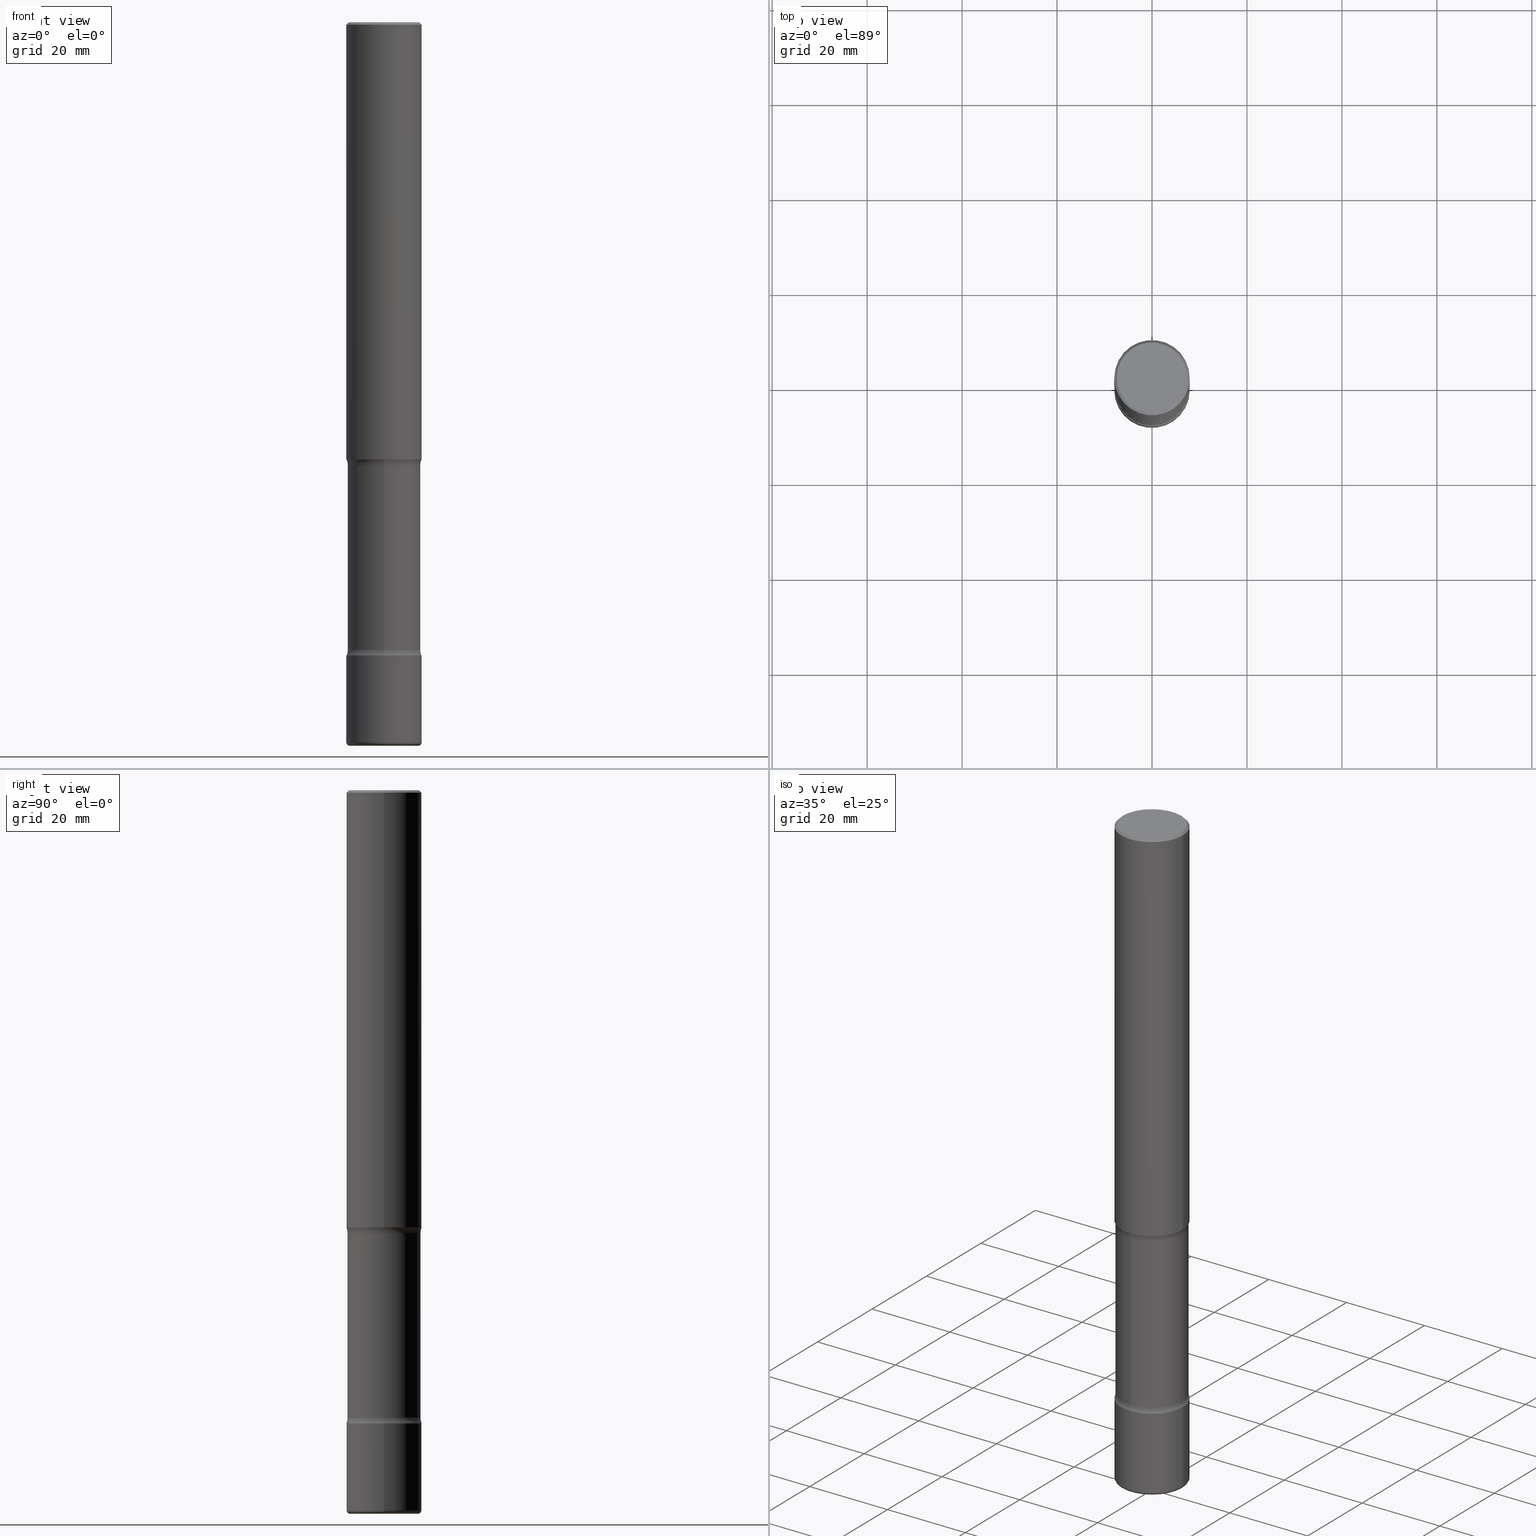
[diagram: canonical four-view strip — front | top / right | iso, engineering-drawing reading convention]
A machine part, canonical four-view strip (front | top / right | iso — engineering-drawing reading convention). The complete STEP part file that produces these views, byte-faithful:
ISO-10303-21;
HEADER;
FILE_DESCRIPTION (( 'STEP AP203' ),
    '1' );
FILE_NAME ('33556.STEP',
    '2024-03-01T22:48:47',
    ( '' ),
    ( '' ),
    'SwSTEP 2.0',
    'SolidWorks 2023',
    '' );
FILE_SCHEMA (( 'CONFIG_CONTROL_DESIGN' ));
ENDSEC;

DATA;
#1 = DATE_TIME_ROLE ( 'classification_date' ) ;
#2 = ORIENTED_EDGE ( 'NONE', *, *, #442, .T. ) ;
#3 = AXIS2_PLACEMENT_3D ( 'NONE', #150, #164, #212 ) ;
#4 = ORIENTED_EDGE ( 'NONE', *, *, #517, .F. ) ;
#5 = ORIENTED_EDGE ( 'NONE', *, *, #413, .T. ) ;
#6 = DIRECTION ( 'NONE',  ( -2.445468806185136597E-29, 3.491481338843145583E-15, 1.000000000000000000 ) ) ;
#7 = LINE ( 'NONE', #439, #477 ) ;
#8 = DIRECTION ( 'NONE',  ( -2.445468806185136877E-29, 3.491481338843145188E-15, 1.000000000000000000 ) ) ;
#9 = CARTESIAN_POINT ( 'NONE',  ( 1.283871123247196938E-28, -1.833027702892651638E-14, -5.250000000000000888 ) ) ;
#10 = DIRECTION ( 'NONE',  ( -2.445468806185136597E-29, 3.491481338843145583E-15, 1.000000000000000000 ) ) ;
#11 = ORIENTED_EDGE ( 'NONE', *, *, #364, .F. ) ;
#12 = DIRECTION ( 'NONE',  ( 6.982962677686266711E-15, 1.000000000000000000, -3.172765739582314775E-15 ) ) ;
#13 = CLOSED_SHELL ( 'NONE', ( #528, #279, #483, #444, #234, #324, #281, #52 ) ) ;
#14 = DIRECTION ( 'NONE',  ( -1.000000000000000000, 6.982962677686265922E-15, -4.883557194083112901E-29 ) ) ;
#15 = ORGANIZATION ( 'UNSPECIFIED', 'UNSPECIFIED', '' ) ;
#16 = APPROVAL_PERSON_ORGANIZATION ( #33, #199, #175 ) ;
#17 = PRODUCT_DEFINITION ( 'UNKNOWN', '', #45, #478 ) ;
#18 = DIRECTION ( 'NONE',  ( -2.445468806185136597E-29, 3.491481338843145583E-15, 1.000000000000000000 ) ) ;
#19 = ADVANCED_FACE ( 'NONE', ( #165 ), #74, .T. ) ;
#20 = ORIENTED_EDGE ( 'NONE', *, *, #408, .T. ) ;
#21 = AXIS2_PLACEMENT_3D ( 'NONE', #493, #59, #152 ) ;
#22 = AXIS2_PLACEMENT_3D ( 'NONE', #216, #170, #479 ) ;
#23 = DIRECTION ( 'NONE',  ( 1.000000000000000000, -6.982962677686274599E-15, 0.000000000000000000 ) ) ;
#24 = ORIENTED_EDGE ( 'NONE', *, *, #491, .F. ) ;
#25 = ORIENTED_EDGE ( 'NONE', *, *, #484, .T. ) ;
#26 = EDGE_CURVE ( 'NONE', #429, #349, #83, .T. ) ;
#27 = CARTESIAN_POINT ( 'NONE',  ( 2.112346210000245327E-15, 0.3024999999999795075, -6.000000000000001776 ) ) ;
#28 = CARTESIAN_POINT ( 'NONE',  ( -0.3125000000000001665, 2.220446049250314264E-15, -1.537167215704658792E-29 ) ) ;
#29 = CARTESIAN_POINT ( 'NONE',  ( 8.864824422421122405E-29, -1.265661985330640574E-14, -3.625000000000000888 ) ) ;
#30 = VECTOR ( 'NONE', #140, 39.37007874015748143 ) ;
#31 = CIRCLE ( 'NONE', #84, 0.1250000000000000278 ) ;
#32 = APPROVAL_DATE_TIME ( #295, #199 ) ;
#33 = PERSON_AND_ORGANIZATION ( #446, #15 ) ;
#34 = ORIENTED_EDGE ( 'NONE', *, *, #125, .T. ) ;
#35 = DIRECTION ( 'NONE',  ( 2.438088387897960049E-29, -3.491481338843145188E-15, -1.000000000000000000 ) ) ;
#36 = ADVANCED_FACE ( 'NONE', ( #255 ), #424, .F. ) ;
#37 = AXIS2_PLACEMENT_3D ( 'NONE', #190, #282, #301 ) ;
#38 = DIRECTION ( 'NONE',  ( 6.982962677686265133E-15, 1.000000000000000000, -3.612360983357701258E-15 ) ) ;
#39 = SECURITY_CLASSIFICATION ( '', '', #251 ) ;
#40 = DATE_TIME_ROLE ( 'creation_date' ) ;
#41 = CONICAL_SURFACE ( 'NONE', #58, 0.3125000000000005551, 0.7853981633974463916 ) ;
#42 = APPLICATION_PROTOCOL_DEFINITION ( 'international standard', 'config_control_design', 1994, #386 ) ;
#43 = DIRECTION ( 'NONE',  ( -6.982962677686265922E-15, -1.000000000000000000, 3.172765739582314775E-15 ) ) ;
#44 = ORIENTED_EDGE ( 'NONE', *, *, #534, .T. ) ;
#45 = PRODUCT_DEFINITION_FORMATION_WITH_SPECIFIED_SOURCE ( 'ANY', '', #204, .NOT_KNOWN. ) ;
#46 = CARTESIAN_POINT ( 'NONE',  ( 2.112346210000222450E-15, 0.3024999999999818390, -5.201010205144337206 ) ) ;
#47 = DIRECTION ( 'NONE',  ( -2.445468806185136597E-29, 3.491481338843145583E-15, 1.000000000000000000 ) ) ;
#48 = VERTEX_POINT ( 'NONE', #267 ) ;
#49 = CARTESIAN_POINT ( 'NONE',  ( 0.2925000000000006484, -2.110215457714323481E-15, 4.268512490114932791E-18 ) ) ;
#50 = AXIS2_PLACEMENT_3D ( 'NONE', #117, #147, #230 ) ;
#51 = ORIENTED_EDGE ( 'NONE', *, *, #331, .F. ) ;
#52 = ADVANCED_FACE ( 'NONE', ( #343 ), #421, .T. ) ;
#53 = FACE_OUTER_BOUND ( 'NONE', #356, .T. ) ;
#54 = ORIENTED_EDGE ( 'NONE', *, *, #125, .F. ) ;
#55 = ORIENTED_EDGE ( 'NONE', *, *, #265, .T. ) ;
#56 = VECTOR ( 'NONE', #185, 39.37007874015748143 ) ;
#57 = EDGE_CURVE ( 'NONE', #357, #495, #286, .T. ) ;
#58 = AXIS2_PLACEMENT_3D ( 'NONE', #371, #260, #428 ) ;
#59 = DIRECTION ( 'NONE',  ( 2.668026719628616344E-29, -3.172765739582314775E-15, -1.000000000000000000 ) ) ;
#60 = DIRECTION ( 'NONE',  ( -1.000000000000000000, 6.982962677686266711E-15, 0.000000000000000000 ) ) ;
#61 = DIRECTION ( 'NONE',  ( 2.438088387897960049E-29, -3.491481338843145188E-15, -1.000000000000000000 ) ) ;
#62 = EDGE_CURVE ( 'NONE', #390, #349, #337, .T. ) ;
#63 = ORIENTED_EDGE ( 'NONE', *, *, #65, .F. ) ;
#64 = DIRECTION ( 'NONE',  ( 1.000000000000000000, -6.982962677686274599E-15, 0.000000000000000000 ) ) ;
#65 = EDGE_CURVE ( 'NONE', #530, #136, #375, .T. ) ;
#66 = FACE_OUTER_BOUND ( 'NONE', #232, .T. ) ;
#67 = CARTESIAN_POINT ( 'NONE',  ( -2.143905624303476607E-15, -0.3125000000000185962, -5.250000000000000000 ) ) ;
#68 = PERSON_AND_ORGANIZATION_ROLE ( 'creator' ) ;
#69 = CC_DESIGN_APPROVAL ( #401, ( #17 ) ) ;
#70 = EDGE_CURVE ( 'NONE', #525, #507, #130, .T. ) ;
#71 = DIRECTION ( 'NONE',  ( -2.445468806185136597E-29, 3.491481338843145583E-15, 1.000000000000000000 ) ) ;
#72 = DATE_AND_TIME ( #222, #92 ) ;
#73 = EDGE_CURVE ( 'NONE', #149, #459, #178, .T. ) ;
#74 = CYLINDRICAL_SURFACE ( 'NONE', #453, 0.3125000000000007216 ) ;
#75 = DIRECTION ( 'NONE',  ( 1.000000000000000000, -6.982962677686271444E-15, 0.000000000000000000 ) ) ;
#76 = PERSON_AND_ORGANIZATION ( #446, #15 ) ;
#77 = FACE_OUTER_BOUND ( 'NONE', #369, .T. ) ;
#78 = ORIENTED_EDGE ( 'NONE', *, *, #65, .T. ) ;
#79 = CARTESIAN_POINT ( 'NONE',  ( 0.3125000000000002220, -2.302631942967053926E-14, -5.969999999999999751 ) ) ;
#80 = PERSON_AND_ORGANIZATION ( #446, #15 ) ;
#81 = EDGE_CURVE ( 'NONE', #525, #429, #524, .T. ) ;
#82 = PLANE ( 'NONE',  #333 ) ;
#83 = CIRCLE ( 'NONE', #276, 0.3125000000000005551 ) ;
#84 = AXIS2_PLACEMENT_3D ( 'NONE', #311, #480, #227 ) ;
#85 = PERSON_AND_ORGANIZATION_ROLE ( 'classification_officer' ) ;
#86 = DIRECTION ( 'NONE',  ( 1.000000000000000000, -6.982962677686269866E-15, 0.000000000000000000 ) ) ;
#87 = AXIS2_PLACEMENT_3D ( 'NONE', #438, #47, #358 ) ;
#88 = ORIENTED_EDGE ( 'NONE', *, *, #491, .T. ) ;
#89 = EDGE_LOOP ( 'NONE', ( #291, #522, #182, #235 ) ) ;
#90 = VERTEX_POINT ( 'NONE', #464 ) ;
#91 = CC_DESIGN_PERSON_AND_ORGANIZATION_ASSIGNMENT ( #472, #85, ( #39 ) ) ;
#92 = LOCAL_TIME ( 17, 48, 47.00000000000000000, #547 ) ;
#93 = APPLICATION_CONTEXT ( 'configuration controlled 3d designs of mechanical parts and assemblies' ) ;
#94 = EDGE_CURVE ( 'NONE', #507, #525, #360, .T. ) ;
#95 = VECTOR ( 'NONE', #543, 39.37007874015748143 ) ;
#96 = ORIENTED_EDGE ( 'NONE', *, *, #442, .F. ) ;
#97 = DIRECTION ( 'NONE',  ( 2.668026719628616344E-29, -3.172765739582314775E-15, -1.000000000000000000 ) ) ;
#98 = CARTESIAN_POINT ( 'NONE',  ( 2.112346210000184979E-15, 0.3024999999999871125, -3.673989794855665458 ) ) ;
#99 = CYLINDRICAL_SURFACE ( 'NONE', #87, 0.3125000000000001665 ) ;
#100 = ADVANCED_FACE ( 'NONE', ( #509 ), #435, .T. ) ;
#101 = DIRECTION ( 'NONE',  ( 6.982962677686265133E-15, 1.000000000000000000, -3.172765739582314775E-15 ) ) ;
#102 = CC_DESIGN_SECURITY_CLASSIFICATION ( #39, ( #45 ) ) ;
#103 = ORIENTED_EDGE ( 'NONE', *, *, #537, .F. ) ;
#104 = ORIENTED_EDGE ( 'NONE', *, *, #484, .F. ) ;
#105 = CYLINDRICAL_SURFACE ( 'NONE', #37, 0.3025000000000002132 ) ;
#106 = ADVANCED_FACE ( 'NONE', ( #77 ), #427, .T. ) ;
#107 = AXIS2_PLACEMENT_3D ( 'NONE', #456, #61, #248 ) ;
#108 = ORIENTED_EDGE ( 'NONE', *, *, #458, .T. ) ;
#109 = TOROIDAL_SURFACE ( 'NONE', #168, 0.4275000000000003797, 0.1250000000000000278 ) ;
#110 = PLANE ( 'NONE',  #107 ) ;
#111 = AXIS2_PLACEMENT_3D ( 'NONE', #275, #443, #193 ) ;
#112 = EDGE_LOOP ( 'NONE', ( #531, #20, #372, #215 ) ) ;
#113 = DIRECTION ( 'NONE',  ( 6.860497997771530774E-15, 1.000000000000000000, 0.000000000000000000 ) ) ;
#114 = CALENDAR_DATE ( 2024, 1, 3 ) ;
#115 = EDGE_CURVE ( 'NONE', #357, #530, #7, .T. ) ;
#116 = EDGE_LOOP ( 'NONE', ( #259, #556, #173, #450 ) ) ;
#117 = CARTESIAN_POINT ( 'NONE',  ( 1.283871123247196938E-28, -1.833027702892651638E-14, -5.250000000000000888 ) ) ;
#118 = AXIS2_PLACEMENT_3D ( 'NONE', #521, #14, #294 ) ;
#119 =( NAMED_UNIT ( * ) PLANE_ANGLE_UNIT ( ) SI_UNIT ( $, .RADIAN. ) );
#120 = ORIENTED_EDGE ( 'NONE', *, *, #550, .F. ) ;
#121 = CARTESIAN_POINT ( 'NONE',  ( 1.270800515080793348E-28, -1.817484388621929912E-14, -5.201010205144336318 ) ) ;
#122 = ORIENTED_EDGE ( 'NONE', *, *, #57, .T. ) ;
#123 = ORIENTED_EDGE ( 'NONE', *, *, #481, .F. ) ;
#124 = CARTESIAN_POINT ( 'NONE',  ( 0.2825000000000001399, -2.281683054933995252E-14, -5.969999999999999751 ) ) ;
#125 = EDGE_CURVE ( 'NONE', #90, #332, #284, .T. ) ;
#126 = CARTESIAN_POINT ( 'NONE',  ( -0.3125000000000005551, 2.112346210000099388E-15, -0.02000000000000000042 ) ) ;
#127 = CARTESIAN_POINT ( 'NONE',  ( -2.109603134314663709E-15, -0.3025000000000137579, -3.673989794855663238 ) ) ;
#128 = APPROVAL_DATE_TIME ( #256, #401 ) ;
#129 = ORIENTED_EDGE ( 'NONE', *, *, #115, .T. ) ;
#130 = CIRCLE ( 'NONE', #320, 0.3125000000000008327 ) ;
#131 = DIRECTION ( 'NONE',  ( 1.000000000000000000, -6.982962677686266711E-15, 4.876176775795935232E-29 ) ) ;
#132 = VERTEX_POINT ( 'NONE', #278 ) ;
#133 = DIRECTION ( 'NONE',  ( 2.668026719628616344E-29, -3.172765739582314775E-15, -1.000000000000000000 ) ) ;
#134 = ORIENTED_EDGE ( 'NONE', *, *, #319, .T. ) ;
#135 = DIRECTION ( 'NONE',  ( 1.000000000000000000, -6.982962677686223323E-15, 0.000000000000000000 ) ) ;
#136 = VERTEX_POINT ( 'NONE', #46 ) ;
#137 = DIRECTION ( 'NONE',  ( 1.000000000000000000, -6.982962677686267499E-15, 4.876067333457678827E-29 ) ) ;
#138 = CIRCLE ( 'NONE', #318, 0.3125000000000001665 ) ;
#139 = TOROIDAL_SURFACE ( 'NONE', #220, 0.4274999999999999911, 0.1250000000000001943 ) ;
#140 = DIRECTION ( 'NONE',  ( -2.445468806185136877E-29, 3.491481338843145188E-15, 1.000000000000000000 ) ) ;
#141 = ORIENTED_EDGE ( 'NONE', *, *, #534, .F. ) ;
#142 = ORIENTED_EDGE ( 'NONE', *, *, #537, .T. ) ;
#143 = VERTEX_POINT ( 'NONE', #403 ) ;
#144 = MANIFOLD_SOLID_BREP ( 'Body-Move/Copy2[4]', #13 ) ;
#145 = ORIENTED_EDGE ( 'NONE', *, *, #57, .F. ) ;
#146 = TOROIDAL_SURFACE ( 'NONE', #194, 0.2825000000000001399, 0.03000000000000021053 ) ;
#147 = DIRECTION ( 'NONE',  ( 2.668026719628616344E-29, -3.172765739582314775E-15, -1.000000000000000000 ) ) ;
#148 = ADVANCED_FACE ( 'NONE', ( #53 ), #467, .F. ) ;
#149 = VERTEX_POINT ( 'NONE', #79 ) ;
#150 = CARTESIAN_POINT ( 'NONE',  ( 8.650790567396838446E-29, -1.330574020672995609E-14, -3.673989794855664570 ) ) ;
#151 = MANIFOLD_SOLID_BREP ( 'Body-Move/Copy2[1]', #200 ) ;
#152 = DIRECTION ( 'NONE',  ( 6.982962677686266711E-15, 1.000000000000000000, -3.496765431890250214E-15 ) ) ;
#153 = EDGE_LOOP ( 'NONE', ( #44, #108 ) ) ;
#154 = CIRCLE ( 'NONE', #454, 0.3025000000000004352 ) ;
#155 = DIRECTION ( 'NONE',  ( 6.982962677686265922E-15, 1.000000000000000000, -3.172765739582314775E-15 ) ) ;
#156 = AXIS2_PLACEMENT_3D ( 'NONE', #121, #436, #312 ) ;
#157 = DIRECTION ( 'NONE',  ( 1.000000000000000000, -6.860497997771530774E-15, 4.844702020008874772E-29 ) ) ;
#158 = ADVANCED_FACE ( 'NONE', ( #412 ), #41, .T. ) ;
#159 = DIRECTION ( 'NONE',  ( -1.000000000000000000, 6.982962677686265922E-15, -4.876176775795935793E-29 ) ) ;
#160 = CARTESIAN_POINT ( 'NONE',  ( 1.329054750118288302E-28, -6.318732508005314289E-15, -3.625000000000000888 ) ) ;
#161 = DIRECTION ( 'NONE',  ( 6.982962677686266711E-15, 1.000000000000000000, -3.172765739582314775E-15 ) ) ;
#162 = APPROVAL_STATUS ( 'not_yet_approved' ) ;
#163 = CARTESIAN_POINT ( 'NONE',  ( 8.650790567396838446E-29, -1.330574020672995609E-14, -3.673989794855664570 ) ) ;
#164 = DIRECTION ( 'NONE',  ( 2.668026719628616344E-29, -3.172765739582314775E-15, -1.000000000000000000 ) ) ;
#165 = FACE_OUTER_BOUND ( 'NONE', #321, .T. ) ;
#166 = CARTESIAN_POINT ( 'NONE',  ( 0.000000000000000000, 0.000000000000000000, 0.000000000000000000 ) ) ;
#167 = DIRECTION ( 'NONE',  ( -2.445468806185136597E-29, 3.491481338843145583E-15, 1.000000000000000000 ) ) ;
#168 = AXIS2_PLACEMENT_3D ( 'NONE', #163, #133, #101 ) ;
#169 =( CONVERSION_BASED_UNIT ( 'INCH', #339 ) LENGTH_UNIT ( ) NAMED_UNIT ( #197 ) );
#170 = DIRECTION ( 'NONE',  ( 2.438088387897960049E-29, -3.491481338843145188E-15, -1.000000000000000000 ) ) ;
#171 = DIRECTION ( 'NONE',  ( 6.982962677686265922E-15, 1.000000000000000000, -3.612360983357703625E-15 ) ) ;
#172 = PERSON_AND_ORGANIZATION ( #446, #15 ) ;
#173 = ORIENTED_EDGE ( 'NONE', *, *, #319, .F. ) ;
#174 = ORIENTED_EDGE ( 'NONE', *, *, #411, .T. ) ;
#175 = APPROVAL_ROLE ( '' ) ;
#176 = AXIS2_PLACEMENT_3D ( 'NONE', #326, #492, #465 ) ;
#177 = ORIENTED_EDGE ( 'NONE', *, *, #413, .F. ) ;
#178 = LINE ( 'NONE', #355, #447 ) ;
#179 = DIRECTION ( 'NONE',  ( 2.668026719628616344E-29, -3.172765739582314775E-15, -1.000000000000000000 ) ) ;
#180 = ORIENTED_EDGE ( 'NONE', *, *, #315, .F. ) ;
#181 =( LENGTH_UNIT ( ) NAMED_UNIT ( * ) SI_UNIT ( $, .METRE. ) );
#182 = ORIENTED_EDGE ( 'NONE', *, *, #73, .T. ) ;
#183 = CC_DESIGN_PERSON_AND_ORGANIZATION_ASSIGNMENT ( #80, #68, ( #17 ) ) ;
#184 = CLOSED_SHELL ( 'NONE', ( #19, #510, #158, #36, #148, #368 ) ) ;
#185 = DIRECTION ( 'NONE',  ( -2.445468806185136877E-29, 3.491481338843145188E-15, 1.000000000000000000 ) ) ;
#186 = TOROIDAL_SURFACE ( 'NONE', #176, 0.2825000000000001399, 0.03000000000000021053 ) ;
#187 = ORIENTED_EDGE ( 'NONE', *, *, #468, .F. ) ;
#188 = ORIENTED_EDGE ( 'NONE', *, *, #62, .T. ) ;
#189 = AXIS2_PLACEMENT_3D ( 'NONE', #221, #293, #515 ) ;
#190 = CARTESIAN_POINT ( 'NONE',  ( 1.483973127219342911E-28, -2.070985133361325197E-14, -6.000000000000000888 ) ) ;
#191 = ORIENTED_EDGE ( 'NONE', *, *, #548, .F. ) ;
#192 = DIRECTION ( 'NONE',  ( 1.000000000000000000, -6.982962677686267499E-15, 4.883557194083113462E-29 ) ) ;
#193 = DIRECTION ( 'NONE',  ( -1.000000000000000000, 7.105427357600945061E-15, 0.000000000000000000 ) ) ;
#194 = AXIS2_PLACEMENT_3D ( 'NONE', #499, #241, #192 ) ;
#195 = CARTESIAN_POINT ( 'NONE',  ( 1.467281283711081958E-28, -2.094888803305887271E-14, -6.000000000000000888 ) ) ;
#196 = CARTESIAN_POINT ( 'NONE',  ( 8.503167813075467676E-29, -1.317453270210525383E-14, -3.625000000000000444 ) ) ;
#197 = DIMENSIONAL_EXPONENTS ( 1.000000000000000000, 0.000000000000000000, 0.000000000000000000, 0.000000000000000000, 0.000000000000000000, 0.000000000000000000, 0.000000000000000000 ) ;
#198 = VERTEX_POINT ( 'NONE', #218 ) ;
#199 = APPROVAL ( #162, 'UNSPECIFIED' ) ;
#200 = CLOSED_SHELL ( 'NONE', ( #100, #437, #106, #519, #313, #225 ) ) ;
#201 = CIRCLE ( 'NONE', #394, 0.2825000000000000844 ) ;
#202 = LOCAL_TIME ( 17, 48, 47.00000000000000000, #298 ) ;
#203 = LINE ( 'NONE', #28, #95 ) ;
#204 = PRODUCT ( '33556', '33556', '', ( #391 ) ) ;
#205 = EDGE_LOOP ( 'NONE', ( #264, #141, #188, #445 ) ) ;
#206 = CARTESIAN_POINT ( 'NONE',  ( 2.042516583223237273E-15, 0.2925000000000006484, -1.019124035366572170E-15 ) ) ;
#207 = FACE_OUTER_BOUND ( 'NONE', #399, .T. ) ;
#208 = COORDINATED_UNIVERSAL_TIME_OFFSET ( 5, 0, .BEHIND. ) ;
#209 = ORIENTED_EDGE ( 'NONE', *, *, #115, .F. ) ;
#210 = DIRECTION ( 'NONE',  ( 1.000000000000000000, -6.982962677686265922E-15, 4.876176775795935793E-29 ) ) ;
#211 = COORDINATED_UNIVERSAL_TIME_OFFSET ( 5, 0, .BEHIND. ) ;
#212 = DIRECTION ( 'NONE',  ( 6.982962677686265133E-15, 1.000000000000000000, -3.172765739582314775E-15 ) ) ;
#213 = DIRECTION ( 'NONE',  ( 1.000000000000000000, -6.982962677686265922E-15, 4.876176775795935793E-29 ) ) ;
#214 = CARTESIAN_POINT ( 'NONE',  ( -1.043851414335219820E-46, 1.490343170380447200E-32, 4.268512490100411279E-18 ) ) ;
#215 = ORIENTED_EDGE ( 'NONE', *, *, #62, .F. ) ;
#216 = CARTESIAN_POINT ( 'NONE',  ( 1.467281283711081958E-28, -2.094888803305887271E-14, -6.000000000000000888 ) ) ;
#217 = CC_DESIGN_PERSON_AND_ORGANIZATION_ASSIGNMENT ( #172, #306, ( #45 ) ) ;
#218 = CARTESIAN_POINT ( 'NONE',  ( -0.3125000000000001665, -1.736676426165973636E-14, -5.250000000000000888 ) ) ;
#219 = AXIS2_PLACEMENT_3D ( 'NONE', #405, #287, #60 ) ;
#220 = AXIS2_PLACEMENT_3D ( 'NONE', #416, #297, #12 ) ;
#221 = CARTESIAN_POINT ( 'NONE',  ( 8.633873894739503570E-29, -1.332996584481247267E-14, -3.673989794855664570 ) ) ;
#222 = CALENDAR_DATE ( 2024, 1, 3 ) ;
#223 = DIRECTION ( 'NONE',  ( 0.000000000000000000, 0.000000000000000000, 1.000000000000000000 ) ) ;
#224 = ORIENTED_EDGE ( 'NONE', *, *, #328, .F. ) ;
#225 = ADVANCED_FACE ( 'NONE', ( #496 ), #110, .F. ) ;
#226 = CARTESIAN_POINT ( 'NONE',  ( 8.864824422421122405E-29, -1.265661985330640574E-14, -3.625000000000000888 ) ) ;
#227 = DIRECTION ( 'NONE',  ( -6.982962677686265133E-15, -1.000000000000000000, 0.000000000000000000 ) ) ;
#228 = CIRCLE ( 'NONE', #50, 0.3125000000000001665 ) ;
#229 = EDGE_LOOP ( 'NONE', ( #5, #129, #96, #24 ) ) ;
#230 = DIRECTION ( 'NONE',  ( 6.982962677686265133E-15, 1.000000000000000000, -3.496765431890254947E-15 ) ) ;
#231 = EDGE_CURVE ( 'NONE', #143, #198, #203, .T. ) ;
#232 = EDGE_LOOP ( 'NONE', ( #120, #268, #78, #51 ) ) ;
#233 = CARTESIAN_POINT ( 'NONE',  ( -1.043851414335219820E-46, 1.490343170380447200E-32, 4.268512490100411279E-18 ) ) ;
#234 = ADVANCED_FACE ( 'NONE', ( #546 ), #539, .F. ) ;
#235 = ORIENTED_EDGE ( 'NONE', *, *, #270, .F. ) ;
#236 = AXIS2_PLACEMENT_3D ( 'NONE', #124, #557, #135 ) ;
#237 = AXIS2_PLACEMENT_3D ( 'NONE', #233, #6, #137 ) ;
#238 = DIRECTION ( 'NONE',  ( 6.982962677686265133E-15, 1.000000000000000000, -3.496765431890254947E-15 ) ) ;
#239 = CIRCLE ( 'NONE', #488, 0.3125000000000001665 ) ;
#240 = ORIENTED_EDGE ( 'NONE', *, *, #70, .T. ) ;
#241 = DIRECTION ( 'NONE',  ( -2.445468806185136597E-29, 3.491481338843145583E-15, 1.000000000000000000 ) ) ;
#242 = CARTESIAN_POINT ( 'NONE',  ( 1.270800515080793348E-28, -1.817484388621929912E-14, -5.201010205144336318 ) ) ;
#243 = CIRCLE ( 'NONE', #277, 0.1250000000000000278 ) ;
#244 = TOROIDAL_SURFACE ( 'NONE', #555, 0.4274999999999999911, 0.1250000000000001943 ) ;
#245 = CARTESIAN_POINT ( 'NONE',  ( 0.3125000000000005551, -2.213735251080470461E-15, -0.02000000000000000042 ) ) ;
#246 = CARTESIAN_POINT ( 'NONE',  ( 1.467281283711081958E-28, -2.094888803305887271E-14, -6.000000000000000888 ) ) ;
#247 = LINE ( 'NONE', #27, #252 ) ;
#248 = DIRECTION ( 'NONE',  ( -1.000000000000000000, 6.982962677686265922E-15, -4.876176775795935793E-29 ) ) ;
#249 = EDGE_LOOP ( 'NONE', ( #134, #322, #11, #538 ) ) ;
#250 = CARTESIAN_POINT ( 'NONE',  ( 0.2825000000000000844, -2.292157498950524589E-14, -6.000000000000000888 ) ) ;
#251 = SECURITY_CLASSIFICATION_LEVEL ( 'unclassified' ) ;
#252 = VECTOR ( 'NONE', #179, 39.37007874015748143 ) ;
#253 = CC_DESIGN_APPROVAL ( #199, ( #39 ) ) ;
#254 = CARTESIAN_POINT ( 'NONE',  ( -0.3125000000000007216, 2.220446049250318208E-15, -1.537167215704661595E-29 ) ) ;
#255 = FACE_OUTER_BOUND ( 'NONE', #153, .T. ) ;
#256 = DATE_AND_TIME ( #554, #417 ) ;
#257 = EDGE_CURVE ( 'NONE', #143, #149, #407, .T. ) ;
#258 = APPROVAL_ROLE ( '' ) ;
#259 = ORIENTED_EDGE ( 'NONE', *, *, #517, .T. ) ;
#260 = DIRECTION ( 'NONE',  ( 2.445468806185136597E-29, -3.491481338843145583E-15, -1.000000000000000000 ) ) ;
#261 = DIRECTION ( 'NONE',  ( 1.000000000000000000, -6.982962677686265922E-15, 4.876176775795935793E-29 ) ) ;
#262 = PERSON_AND_ORGANIZATION ( #446, #15 ) ;
#263 = AXIS2_PLACEMENT_3D ( 'NONE', #160, #504, #155 ) ;
#264 = ORIENTED_EDGE ( 'NONE', *, *, #408, .F. ) ;
#265 = EDGE_CURVE ( 'NONE', #370, #149, #387, .T. ) ;
#266 = AXIS2_PLACEMENT_3D ( 'NONE', #290, #303, #470 ) ;
#267 = CARTESIAN_POINT ( 'NONE',  ( -2.143905624303522755E-15, -0.3125000000000138223, -3.624999999999999556 ) ) ;
#268 = ORIENTED_EDGE ( 'NONE', *, *, #380, .T. ) ;
#269 = CALENDAR_DATE ( 2024, 1, 3 ) ;
#270 = EDGE_CURVE ( 'NONE', #198, #459, #239, .T. ) ;
#271 = UNCERTAINTY_MEASURE_WITH_UNIT (LENGTH_MEASURE( 1.000000000000000082E-05 ), #169, 'distance_accuracy_value', 'NONE');
#272 = CARTESIAN_POINT ( 'NONE',  ( 8.864824422421122405E-29, -1.265661985330640574E-14, -3.625000000000000888 ) ) ;
#273 = DIRECTION ( 'NONE',  ( 1.000000000000000000, -6.982962677686267499E-15, 4.876067333457678827E-29 ) ) ;
#274 = ORIENTED_EDGE ( 'NONE', *, *, #94, .T. ) ;
#275 = CARTESIAN_POINT ( 'NONE',  ( -0.2825000000000001399, -1.883686036437129492E-14, -5.969999999999999751 ) ) ;
#276 = AXIS2_PLACEMENT_3D ( 'NONE', #384, #506, #545 ) ;
#277 = AXIS2_PLACEMENT_3D ( 'NONE', #536, #289, #501 ) ;
#278 = CARTESIAN_POINT ( 'NONE',  ( -0.2825000000000000844, -1.878265117408992254E-14, -6.000000000000000888 ) ) ;
#279 = ADVANCED_FACE ( 'NONE', ( #66 ), #244, .F. ) ;
#280 = ORIENTED_EDGE ( 'NONE', *, *, #364, .T. ) ;
#281 = ADVANCED_FACE ( 'NONE', ( #207 ), #139, .F. ) ;
#282 = DIRECTION ( 'NONE',  ( 2.668026719628616344E-29, -3.172765739582314775E-15, -1.000000000000000000 ) ) ;
#283 = EDGE_LOOP ( 'NONE', ( #123, #177, #288, #354 ) ) ;
#284 = CIRCLE ( 'NONE', #317, 0.3125000000000001665 ) ;
#285 = CIRCLE ( 'NONE', #490, 0.3024999999999999911 ) ;
#286 = CIRCLE ( 'NONE', #189, 0.3025000000000004352 ) ;
#287 = DIRECTION ( 'NONE',  ( 2.445468806185136597E-29, -3.491481338843145583E-15, -1.000000000000000000 ) ) ;
#288 = ORIENTED_EDGE ( 'NONE', *, *, #328, .T. ) ;
#289 = DIRECTION ( 'NONE',  ( 1.000000000000000000, -6.860497997771530774E-15, 4.844702020008874772E-29 ) ) ;
#290 = CARTESIAN_POINT ( 'NONE',  ( 1.459944877292526494E-28, -2.084414359289357934E-14, -5.969999999999999751 ) ) ;
#291 = ORIENTED_EDGE ( 'NONE', *, *, #231, .F. ) ;
#292 = ORIENTED_EDGE ( 'NONE', *, *, #81, .T. ) ;
#293 = DIRECTION ( 'NONE',  ( 2.668026719628616344E-29, -3.172765739582314775E-15, -1.000000000000000000 ) ) ;
#294 = DIRECTION ( 'NONE',  ( -6.982962677686267499E-15, -1.000000000000000000, 0.000000000000000000 ) ) ;
#295 = DATE_AND_TIME ( #114, #309 ) ;
#296 = CARTESIAN_POINT ( 'NONE',  ( 1.459944877292526494E-28, -2.084414359289357934E-14, -5.969999999999999751 ) ) ;
#297 = DIRECTION ( 'NONE',  ( 2.668026719628616344E-29, -3.172765739582314775E-15, -1.000000000000000000 ) ) ;
#298 = COORDINATED_UNIVERSAL_TIME_OFFSET ( 5, 0, .BEHIND. ) ;
#299 = AXIS2_PLACEMENT_3D ( 'NONE', #214, #482, #273 ) ;
#300 = CC_DESIGN_PERSON_AND_ORGANIZATION_ASSIGNMENT ( #262, #430, ( #45 ) ) ;
#301 = DIRECTION ( 'NONE',  ( 6.982962677686265133E-15, 1.000000000000000000, -3.612360983357701258E-15 ) ) ;
#302 = CARTESIAN_POINT ( 'NONE',  ( 1.271890821733103427E-28, -1.815923007439421067E-14, -5.201010205144336318 ) ) ;
#303 = DIRECTION ( 'NONE',  ( -2.445468806185136597E-29, 3.491481338843145583E-15, 1.000000000000000000 ) ) ;
#304 = DIRECTION ( 'NONE',  ( 2.668026719628616344E-29, -3.172765739582314775E-15, -1.000000000000000000 ) ) ;
#305 = APPLICATION_PROTOCOL_DEFINITION ( 'international standard', 'config_control_design', 1994, #93 ) ;
#306 = PERSON_AND_ORGANIZATION_ROLE ( 'design_supplier' ) ;
#307 = CARTESIAN_POINT ( 'NONE',  ( 1.283871123247196938E-28, -1.833027702892651638E-14, -5.250000000000000888 ) ) ;
#308 = AXIS2_PLACEMENT_3D ( 'NONE', #196, #374, #455 ) ;
#309 = LOCAL_TIME ( 17, 48, 47.00000000000000000, #348 ) ;
#310 = FACE_OUTER_BOUND ( 'NONE', #559, .T. ) ;
#311 = CARTESIAN_POINT ( 'NONE',  ( 2.985216544710967529E-15, 0.4274999999999870570, -3.673989794855665458 ) ) ;
#312 = DIRECTION ( 'NONE',  ( 6.982962677686265922E-15, 1.000000000000000000, -3.612360983357703625E-15 ) ) ;
#313 = ADVANCED_FACE ( 'NONE', ( #502 ), #99, .T. ) ;
#314 = CARTESIAN_POINT ( 'NONE',  ( 0.3125000000000001665, -2.051245286570347946E-14, -5.250000000000000888 ) ) ;
#315 = EDGE_CURVE ( 'NONE', #132, #143, #362, .T. ) ;
#316 = ORIENTED_EDGE ( 'NONE', *, *, #411, .F. ) ;
#317 = AXIS2_PLACEMENT_3D ( 'NONE', #363, #529, #238 ) ;
#318 = AXIS2_PLACEMENT_3D ( 'NONE', #471, #18, #410 ) ;
#319 = EDGE_CURVE ( 'NONE', #149, #143, #500, .T. ) ;
#320 = AXIS2_PLACEMENT_3D ( 'NONE', #272, #352, #523 ) ;
#321 = EDGE_LOOP ( 'NONE', ( #240, #174, #419, #351 ) ) ;
#322 = ORIENTED_EDGE ( 'NONE', *, *, #231, .T. ) ;
#323 = FACE_OUTER_BOUND ( 'NONE', #116, .T. ) ;
#324 = ADVANCED_FACE ( 'NONE', ( #503 ), #82, .F. ) ;
#325 = AXIS2_PLACEMENT_3D ( 'NONE', #166, #223, #508 ) ;
#326 = CARTESIAN_POINT ( 'NONE',  ( 1.459944877292526494E-28, -2.084414359289357934E-14, -5.969999999999999751 ) ) ;
#327 = EDGE_LOOP ( 'NONE', ( #209, #122, #88, #63 ) ) ;
#328 = EDGE_CURVE ( 'NONE', #495, #532, #31, .T. ) ;
#329 = AXIS2_PLACEMENT_3D ( 'NONE', #296, #513, #388 ) ;
#330 = CIRCLE ( 'NONE', #118, 0.1250000000000001943 ) ;
#331 = EDGE_CURVE ( 'NONE', #90, #136, #330, .T. ) ;
#332 = VERTEX_POINT ( 'NONE', #67 ) ;
#333 = AXIS2_PLACEMENT_3D ( 'NONE', #307, #476, #43 ) ;
#334 = DIRECTION ( 'NONE',  ( -2.445468806185136597E-29, 3.491481338843145583E-15, 1.000000000000000000 ) ) ;
#335 = MANIFOLD_SOLID_BREP ( 'Body-Move/Copy2[2]', #184 ) ;
#336 = LINE ( 'NONE', #254, #56 ) ;
#337 = LINE ( 'NONE', #126, #473 ) ;
#338 = DIRECTION ( 'NONE',  ( 2.668026719628616344E-29, -3.172765739582314775E-15, -1.000000000000000000 ) ) ;
#339 = LENGTH_MEASURE_WITH_UNIT ( LENGTH_MEASURE( 0.02539999999999999897 ), #181 );
#340 = CARTESIAN_POINT ( 'NONE',  ( -2.932862894047202326E-15, -0.4275000000000181988, -5.201010205144335430 ) ) ;
#341 = LOCAL_TIME ( 17, 48, 47.00000000000000000, #211 ) ;
#342 = AXIS2_PLACEMENT_3D ( 'NONE', #29, #420, #213 ) ;
#343 = FACE_OUTER_BOUND ( 'NONE', #327, .T. ) ;
#344 = ORIENTED_EDGE ( 'NONE', *, *, #70, .F. ) ;
#345 = APPROVAL ( #389, 'UNSPECIFIED' ) ;
#346 = CARTESIAN_POINT ( 'NONE',  ( 0.000000000000000000, 0.000000000000000000, 0.000000000000000000 ) ) ;
#347 = PERSON_AND_ORGANIZATION ( #446, #15 ) ;
#348 = COORDINATED_UNIVERSAL_TIME_OFFSET ( 5, 0, .BEHIND. ) ;
#349 = VERTEX_POINT ( 'NONE', #512 ) ;
#350 = AXIS2_PLACEMENT_3D ( 'NONE', #466, #392, #131 ) ;
#351 = ORIENTED_EDGE ( 'NONE', *, *, #81, .F. ) ;
#352 = DIRECTION ( 'NONE',  ( -2.445468806185136597E-29, 3.491481338843145583E-15, 1.000000000000000000 ) ) ;
#353 = ADVANCED_BREP_SHAPE_REPRESENTATION ( '33556', ( #151, #335, #144, #325 ), #431 ) ;
#354 = ORIENTED_EDGE ( 'NONE', *, *, #548, .T. ) ;
#355 = CARTESIAN_POINT ( 'NONE',  ( 0.3125000000000001665, -2.182175836776959530E-15, 1.523805242436230636E-29 ) ) ;
#356 = EDGE_LOOP ( 'NONE', ( #344, #440 ) ) ;
#357 = VERTEX_POINT ( 'NONE', #127 ) ;
#358 = DIRECTION ( 'NONE',  ( 1.000000000000000000, -6.982962677686266711E-15, 4.876176775795935232E-29 ) ) ;
#359 = CARTESIAN_POINT ( 'NONE',  ( 0.3125000000000007216, -2.182175836776963080E-15, 1.523805242436233439E-29 ) ) ;
#360 = CIRCLE ( 'NONE', #526, 0.3125000000000008327 ) ;
#361 = CIRCLE ( 'NONE', #21, 0.3125000000000006106 ) ;
#362 = CIRCLE ( 'NONE', #111, 0.03000000000000019318 ) ;
#363 = CARTESIAN_POINT ( 'NONE',  ( 1.283871123247196938E-28, -1.833027702892651638E-14, -5.250000000000000888 ) ) ;
#364 = EDGE_CURVE ( 'NONE', #459, #198, #138, .T. ) ;
#365 = APPROVAL_PERSON_ORGANIZATION ( #76, #345, #258 ) ;
#366 = ORIENTED_EDGE ( 'NONE', *, *, #270, .T. ) ;
#367 = CARTESIAN_POINT ( 'NONE',  ( 8.633873894739503570E-29, -1.332996584481247267E-14, -3.673989794855664570 ) ) ;
#368 = ADVANCED_FACE ( 'NONE', ( #505 ), #460, .T. ) ;
#369 = EDGE_LOOP ( 'NONE', ( #4, #104 ) ) ;
#370 = VERTEX_POINT ( 'NONE', #250 ) ;
#371 = CARTESIAN_POINT ( 'NONE',  ( 4.890937612370273159E-31, -6.982962677686291609E-17, -0.02000000000000000042 ) ) ;
#372 = ORIENTED_EDGE ( 'NONE', *, *, #26, .T. ) ;
#373 = CARTESIAN_POINT ( 'NONE',  ( -0.2925000000000006484, 2.077431396611668527E-15, 4.268512490086005323E-18 ) ) ;
#374 = DIRECTION ( 'NONE',  ( 2.668026719628616344E-29, -3.172765739582314775E-15, -1.000000000000000000 ) ) ;
#375 = CIRCLE ( 'NONE', #156, 0.3024999999999999911 ) ;
#376 = APPROVAL_PERSON_ORGANIZATION ( #469, #401, #516 ) ;
#377 = FACE_OUTER_BOUND ( 'NONE', #112, .T. ) ;
#378 = PRODUCT_DEFINITION_SHAPE ( 'NONE', 'NONE',  #17 ) ;
#379 = EDGE_LOOP ( 'NONE', ( #34, #553 ) ) ;
#380 = EDGE_CURVE ( 'NONE', #332, #530, #385, .T. ) ;
#381 = SHAPE_DEFINITION_REPRESENTATION ( #378, #353 ) ;
#382 = CARTESIAN_POINT ( 'NONE',  ( 0.000000000000000000, 0.000000000000000000, 0.000000000000000000 ) ) ;
#383 = APPROVAL_STATUS ( 'not_yet_approved' ) ;
#384 = CARTESIAN_POINT ( 'NONE',  ( 4.890937612370273159E-31, -6.982962677686291609E-17, -0.02000000000000000042 ) ) ;
#385 = CIRCLE ( 'NONE', #520, 0.1250000000000001943 ) ;
#386 = APPLICATION_CONTEXT ( 'configuration controlled 3d designs of mechanical parts and assemblies' ) ;
#387 = CIRCLE ( 'NONE', #236, 0.03000000000000019318 ) ;
#388 = DIRECTION ( 'NONE',  ( 1.000000000000000000, -6.982962677686261977E-15, 0.000000000000000000 ) ) ;
#389 = APPROVAL_STATUS ( 'not_yet_approved' ) ;
#390 = VERTEX_POINT ( 'NONE', #373 ) ;
#391 = MECHANICAL_CONTEXT ( 'NONE', #386, 'mechanical' ) ;
#392 = DIRECTION ( 'NONE',  ( -2.445468806185136597E-29, 3.491481338843145583E-15, 1.000000000000000000 ) ) ;
#393 = ORIENTED_EDGE ( 'NONE', *, *, #331, .T. ) ;
#394 = AXIS2_PLACEMENT_3D ( 'NONE', #195, #167, #23 ) ;
#395 = CC_DESIGN_DATE_AND_TIME_ASSIGNMENT ( #434, #1, ( #39 ) ) ;
#396 = CARTESIAN_POINT ( 'NONE',  ( -0.3125000000000008327, -4.142778690791312763E-15, -3.625000000000000888 ) ) ;
#397 = CARTESIAN_POINT ( 'NONE',  ( 4.890937612370273159E-31, -6.982962677686291609E-17, -0.02000000000000000042 ) ) ;
#398 = EDGE_LOOP ( 'NONE', ( #191, #103 ) ) ;
#399 = EDGE_LOOP ( 'NONE', ( #489, #54, #393, #2 ) ) ;
#400 = AXIS2_PLACEMENT_3D ( 'NONE', #206, #35, #159 ) ;
#401 = APPROVAL ( #383, 'UNSPECIFIED' ) ;
#402 = CIRCLE ( 'NONE', #498, 0.2825000000000000844 ) ;
#403 = CARTESIAN_POINT ( 'NONE',  ( -0.3125000000000002220, -1.862369754364326626E-14, -5.969999999999999751 ) ) ;
#404 = DIRECTION ( 'NONE',  ( 6.982962677686265922E-15, 1.000000000000000000, -3.612360983357698103E-15 ) ) ;
#405 = CARTESIAN_POINT ( 'NONE',  ( 4.890937612370273159E-31, -6.982962677686291609E-17, -0.02000000000000000042 ) ) ;
#406 = CC_DESIGN_APPROVAL ( #345, ( #45 ) ) ;
#407 = CIRCLE ( 'NONE', #329, 0.3125000000000000555 ) ;
#408 = EDGE_CURVE ( 'NONE', #518, #429, #541, .T. ) ;
#409 = DIRECTION ( 'NONE',  ( -2.445468806185136597E-29, 3.491481338843145583E-15, 1.000000000000000000 ) ) ;
#410 = DIRECTION ( 'NONE',  ( 1.000000000000000000, -6.982962677686271444E-15, 0.000000000000000000 ) ) ;
#411 = EDGE_CURVE ( 'NONE', #507, #349, #336, .T. ) ;
#412 = FACE_OUTER_BOUND ( 'NONE', #205, .T. ) ;
#413 = EDGE_CURVE ( 'NONE', #495, #357, #154, .T. ) ;
#414 = DIRECTION ( 'NONE',  ( 0.7071067811865461294, -7.319954787623251312E-15, -0.7071067811865489050 ) ) ;
#415 = TOROIDAL_SURFACE ( 'NONE', #3, 0.4275000000000003797, 0.1250000000000000278 ) ;
#416 = CARTESIAN_POINT ( 'NONE',  ( 1.271890821733103427E-28, -1.815923007439421067E-14, -5.201010205144336318 ) ) ;
#417 = LOCAL_TIME ( 17, 48, 47.00000000000000000, #208 ) ;
#418 = DATE_AND_TIME ( #558, #341 ) ;
#419 = ORIENTED_EDGE ( 'NONE', *, *, #26, .F. ) ;
#420 = DIRECTION ( 'NONE',  ( -2.438088387897960049E-29, 3.491481338843145188E-15, 1.000000000000000000 ) ) ;
#421 = CYLINDRICAL_SURFACE ( 'NONE', #497, 0.3025000000000002132 ) ;
#422 = PERSON_AND_ORGANIZATION_ROLE ( 'design_owner' ) ;
#423 = ORIENTED_EDGE ( 'NONE', *, *, #257, .F. ) ;
#424 = PLANE ( 'NONE',  #400 ) ;
#425 = CARTESIAN_POINT ( 'NONE',  ( -2.109603134314618744E-15, -0.3025000000000181433, -5.201010205144335430 ) ) ;
#426 = APPROVAL_DATE_TIME ( #72, #345 ) ;
#427 = PLANE ( 'NONE',  #22 ) ;
#428 = DIRECTION ( 'NONE',  ( -1.000000000000000000, 6.982962677686266711E-15, 0.000000000000000000 ) ) ;
#429 = VERTEX_POINT ( 'NONE', #245 ) ;
#430 = PERSON_AND_ORGANIZATION_ROLE ( 'creator' ) ;
#431 =( GEOMETRIC_REPRESENTATION_CONTEXT ( 3 ) GLOBAL_UNCERTAINTY_ASSIGNED_CONTEXT ( ( #271 ) ) GLOBAL_UNIT_ASSIGNED_CONTEXT ( ( #169, #119, #461 ) ) REPRESENTATION_CONTEXT ( 'NONE', 'WORKASPACE' ) );
#432 = CC_DESIGN_PERSON_AND_ORGANIZATION_ASSIGNMENT ( #347, #422, ( #204 ) ) ;
#433 = DIRECTION ( 'NONE',  ( -0.7071067811865461294, 2.468850131082242072E-15, -0.7071067811865489050 ) ) ;
#434 = DATE_AND_TIME ( #269, #202 ) ;
#435 = CYLINDRICAL_SURFACE ( 'NONE', #350, 0.3125000000000001665 ) ;
#436 = DIRECTION ( 'NONE',  ( 2.668026719628616344E-29, -3.172765739582314775E-15, -1.000000000000000000 ) ) ;
#437 = ADVANCED_FACE ( 'NONE', ( #323 ), #186, .T. ) ;
#438 = CARTESIAN_POINT ( 'NONE',  ( 0.000000000000000000, 0.000000000000000000, 0.000000000000000000 ) ) ;
#439 = CARTESIAN_POINT ( 'NONE',  ( -2.075300644325740765E-15, -0.3025000000000208633, -5.999999999999999112 ) ) ;
#440 = ORIENTED_EDGE ( 'NONE', *, *, #94, .F. ) ;
#441 = CIRCLE ( 'NONE', #299, 0.2925000000000006484 ) ;
#442 = EDGE_CURVE ( 'NONE', #136, #530, #285, .T. ) ;
#443 = DIRECTION ( 'NONE',  ( 7.105427357601001859E-15, 1.000000000000000000, -3.491481338843145583E-15 ) ) ;
#444 = ADVANCED_FACE ( 'NONE', ( #549 ), #109, .F. ) ;
#445 = ORIENTED_EDGE ( 'NONE', *, *, #468, .T. ) ;
#446 = PERSON ( 'UNSPECIFIED', 'UNSPECIFIED', 'UNSPECIFIED', ('UNSPECIFIED'), ('UNSPECIFIED'), ('UNSPECIFIED') ) ;
#447 = VECTOR ( 'NONE', #8, 39.37007874015748143 ) ;
#448 = AXIS2_PLACEMENT_3D ( 'NONE', #382, #462, #210 ) ;
#449 = FACE_OUTER_BOUND ( 'NONE', #229, .T. ) ;
#450 = ORIENTED_EDGE ( 'NONE', *, *, #265, .F. ) ;
#451 = CC_DESIGN_DATE_AND_TIME_ASSIGNMENT ( #418, #40, ( #17 ) ) ;
#452 = DIRECTION ( 'NONE',  ( 1.000000000000000000, -6.982962677686268288E-15, 0.000000000000000000 ) ) ;
#453 = AXIS2_PLACEMENT_3D ( 'NONE', #346, #71, #261 ) ;
#454 = AXIS2_PLACEMENT_3D ( 'NONE', #367, #494, #404 ) ;
#455 = DIRECTION ( 'NONE',  ( 6.982962677686266711E-15, 1.000000000000000000, -3.496765431890250214E-15 ) ) ;
#456 = CARTESIAN_POINT ( 'NONE',  ( 1.283871123247196938E-28, -1.833027702892651638E-14, -5.250000000000000888 ) ) ;
#457 = ORIENTED_EDGE ( 'NONE', *, *, #481, .T. ) ;
#458 = EDGE_CURVE ( 'NONE', #518, #390, #463, .T. ) ;
#459 = VERTEX_POINT ( 'NONE', #314 ) ;
#460 = CYLINDRICAL_SURFACE ( 'NONE', #448, 0.3125000000000007216 ) ;
#461 =( NAMED_UNIT ( * ) SI_UNIT ( $, .STERADIAN. ) SOLID_ANGLE_UNIT ( ) );
#462 = DIRECTION ( 'NONE',  ( -2.445468806185136597E-29, 3.491481338843145583E-15, 1.000000000000000000 ) ) ;
#463 = CIRCLE ( 'NONE', #237, 0.2925000000000006484 ) ;
#464 = CARTESIAN_POINT ( 'NONE',  ( 2.182175836777088115E-15, 0.3124999999999819589, -5.250000000000001776 ) ) ;
#465 = DIRECTION ( 'NONE',  ( 1.000000000000000000, -6.982962677686267499E-15, 4.883557194083113462E-29 ) ) ;
#466 = CARTESIAN_POINT ( 'NONE',  ( 0.000000000000000000, 0.000000000000000000, 0.000000000000000000 ) ) ;
#467 = PLANE ( 'NONE',  #342 ) ;
#468 = EDGE_CURVE ( 'NONE', #349, #429, #486, .T. ) ;
#469 = PERSON_AND_ORGANIZATION ( #446, #15 ) ;
#470 = DIRECTION ( 'NONE',  ( 1.000000000000000000, -6.982962677686261977E-15, 0.000000000000000000 ) ) ;
#471 = CARTESIAN_POINT ( 'NONE',  ( 1.283871123247196938E-28, -1.833027702892651638E-14, -5.250000000000000888 ) ) ;
#472 = PERSON_AND_ORGANIZATION ( #446, #15 ) ;
#473 = VECTOR ( 'NONE', #433, 39.37007874015748143 ) ;
#474 = DIRECTION ( 'NONE',  ( -2.445468806185136597E-29, 3.491481338843145583E-15, 1.000000000000000000 ) ) ;
#475 = CONICAL_SURFACE ( 'NONE', #219, 0.3125000000000005551, 0.7853981633974463916 ) ;
#476 = DIRECTION ( 'NONE',  ( -2.668026719628615784E-29, 3.172765739582314775E-15, 1.000000000000000000 ) ) ;
#477 = VECTOR ( 'NONE', #97, 39.37007874015748143 ) ;
#478 = DESIGN_CONTEXT ( 'detailed design', #93, 'design' ) ;
#479 = DIRECTION ( 'NONE',  ( -1.000000000000000000, 6.982962677686265922E-15, -4.876176775795935793E-29 ) ) ;
#480 = DIRECTION ( 'NONE',  ( -1.000000000000000000, 6.982962677686265922E-15, -4.883557194083112901E-29 ) ) ;
#481 = EDGE_CURVE ( 'NONE', #357, #48, #243, .T. ) ;
#482 = DIRECTION ( 'NONE',  ( -2.445468806185136597E-29, 3.491481338843145583E-15, 1.000000000000000000 ) ) ;
#483 = ADVANCED_FACE ( 'NONE', ( #310 ), #415, .F. ) ;
#484 = EDGE_CURVE ( 'NONE', #132, #370, #201, .T. ) ;
#485 = FACE_OUTER_BOUND ( 'NONE', #514, .T. ) ;
#486 = CIRCLE ( 'NONE', #551, 0.3125000000000005551 ) ;
#487 = EDGE_LOOP ( 'NONE', ( #280, #366 ) ) ;
#488 = AXIS2_PLACEMENT_3D ( 'NONE', #9, #409, #75 ) ;
#489 = ORIENTED_EDGE ( 'NONE', *, *, #380, .F. ) ;
#490 = AXIS2_PLACEMENT_3D ( 'NONE', #242, #542, #171 ) ;
#491 = EDGE_CURVE ( 'NONE', #495, #136, #247, .T. ) ;
#492 = DIRECTION ( 'NONE',  ( -2.445468806185136597E-29, 3.491481338843145583E-15, 1.000000000000000000 ) ) ;
#493 = CARTESIAN_POINT ( 'NONE',  ( 8.503167813075467676E-29, -1.317453270210525383E-14, -3.625000000000000444 ) ) ;
#494 = DIRECTION ( 'NONE',  ( 2.668026719628616344E-29, -3.172765739582314775E-15, -1.000000000000000000 ) ) ;
#495 = VERTEX_POINT ( 'NONE', #98 ) ;
#496 = FACE_OUTER_BOUND ( 'NONE', #487, .T. ) ;
#497 = AXIS2_PLACEMENT_3D ( 'NONE', #552, #304, #38 ) ;
#498 = AXIS2_PLACEMENT_3D ( 'NONE', #246, #334, #64 ) ;
#499 = CARTESIAN_POINT ( 'NONE',  ( 1.459944877292526494E-28, -2.084414359289357934E-14, -5.969999999999999751 ) ) ;
#500 = CIRCLE ( 'NONE', #266, 0.3125000000000000555 ) ;
#501 = DIRECTION ( 'NONE',  ( 6.860497997771532351E-15, 1.000000000000000000, 0.000000000000000000 ) ) ;
#502 = FACE_OUTER_BOUND ( 'NONE', #89, .T. ) ;
#503 = FACE_OUTER_BOUND ( 'NONE', #379, .T. ) ;
#504 = DIRECTION ( 'NONE',  ( 2.668026719628615784E-29, -3.172765739582314775E-15, -1.000000000000000000 ) ) ;
#505 = FACE_OUTER_BOUND ( 'NONE', #535, .T. ) ;
#506 = DIRECTION ( 'NONE',  ( -2.445468806185136597E-29, 3.491481338843145583E-15, 1.000000000000000000 ) ) ;
#507 = VERTEX_POINT ( 'NONE', #396 ) ;
#508 = DIRECTION ( 'NONE',  ( 1.000000000000000000, 0.000000000000000000, 0.000000000000000000 ) ) ;
#509 = FACE_OUTER_BOUND ( 'NONE', #249, .T. ) ;
#510 = ADVANCED_FACE ( 'NONE', ( #377 ), #475, .T. ) ;
#511 = CARTESIAN_POINT ( 'NONE',  ( 2.182175836777047488E-15, 0.3124999999999874545, -3.625000000000000888 ) ) ;
#512 = CARTESIAN_POINT ( 'NONE',  ( -0.3125000000000005551, 2.112346210000099388E-15, -0.02000000000000000042 ) ) ;
#513 = DIRECTION ( 'NONE',  ( -2.445468806185136597E-29, 3.491481338843145583E-15, 1.000000000000000000 ) ) ;
#514 = EDGE_LOOP ( 'NONE', ( #180, #25, #55, #423 ) ) ;
#515 = DIRECTION ( 'NONE',  ( 6.982962677686265922E-15, 1.000000000000000000, -3.612360983357698103E-15 ) ) ;
#516 = APPROVAL_ROLE ( '' ) ;
#517 = EDGE_CURVE ( 'NONE', #370, #132, #402, .T. ) ;
#518 = VERTEX_POINT ( 'NONE', #49 ) ;
#519 = ADVANCED_FACE ( 'NONE', ( #485 ), #146, .T. ) ;
#520 = AXIS2_PLACEMENT_3D ( 'NONE', #340, #157, #113 ) ;
#521 = CARTESIAN_POINT ( 'NONE',  ( 2.985216544711005789E-15, 0.4274999999999818390, -5.201010205144337206 ) ) ;
#522 = ORIENTED_EDGE ( 'NONE', *, *, #257, .T. ) ;
#523 = DIRECTION ( 'NONE',  ( 1.000000000000000000, -6.982962677686269866E-15, 0.000000000000000000 ) ) ;
#524 = LINE ( 'NONE', #359, #30 ) ;
#525 = VERTEX_POINT ( 'NONE', #533 ) ;
#526 = AXIS2_PLACEMENT_3D ( 'NONE', #226, #474, #86 ) ;
#527 = VECTOR ( 'NONE', #414, 39.37007874015748143 ) ;
#528 = ADVANCED_FACE ( 'NONE', ( #449 ), #105, .T. ) ;
#529 = DIRECTION ( 'NONE',  ( 2.668026719628616344E-29, -3.172765739582314775E-15, -1.000000000000000000 ) ) ;
#530 = VERTEX_POINT ( 'NONE', #425 ) ;
#531 = ORIENTED_EDGE ( 'NONE', *, *, #458, .F. ) ;
#532 = VERTEX_POINT ( 'NONE', #511 ) ;
#533 = CARTESIAN_POINT ( 'NONE',  ( 0.3125000000000008327, -1.483879569008337040E-14, -3.625000000000000888 ) ) ;
#534 = EDGE_CURVE ( 'NONE', #390, #518, #441, .T. ) ;
#535 = EDGE_LOOP ( 'NONE', ( #316, #274, #292, #187 ) ) ;
#536 = CARTESIAN_POINT ( 'NONE',  ( -2.932862894047245319E-15, -0.4275000000000137024, -3.673989794855663238 ) ) ;
#537 = EDGE_CURVE ( 'NONE', #48, #532, #540, .T. ) ;
#538 = ORIENTED_EDGE ( 'NONE', *, *, #73, .F. ) ;
#539 = PLANE ( 'NONE',  #263 ) ;
#540 = CIRCLE ( 'NONE', #308, 0.3125000000000006106 ) ;
#541 = LINE ( 'NONE', #544, #527 ) ;
#542 = DIRECTION ( 'NONE',  ( 2.668026719628616344E-29, -3.172765739582314775E-15, -1.000000000000000000 ) ) ;
#543 = DIRECTION ( 'NONE',  ( -2.445468806185136877E-29, 3.491481338843145188E-15, 1.000000000000000000 ) ) ;
#544 = CARTESIAN_POINT ( 'NONE',  ( 0.3125000000000005551, -2.213735251080470461E-15, -0.02000000000000000042 ) ) ;
#545 = DIRECTION ( 'NONE',  ( 1.000000000000000000, -6.982962677686268288E-15, 0.000000000000000000 ) ) ;
#546 = FACE_OUTER_BOUND ( 'NONE', #398, .T. ) ;
#547 = COORDINATED_UNIVERSAL_TIME_OFFSET ( 5, 0, .BEHIND. ) ;
#548 = EDGE_CURVE ( 'NONE', #532, #48, #361, .T. ) ;
#549 = FACE_OUTER_BOUND ( 'NONE', #283, .T. ) ;
#550 = EDGE_CURVE ( 'NONE', #332, #90, #228, .T. ) ;
#551 = AXIS2_PLACEMENT_3D ( 'NONE', #397, #10, #452 ) ;
#552 = CARTESIAN_POINT ( 'NONE',  ( 1.483973127219342911E-28, -2.070985133361325197E-14, -6.000000000000000888 ) ) ;
#553 = ORIENTED_EDGE ( 'NONE', *, *, #550, .T. ) ;
#554 = CALENDAR_DATE ( 2024, 1, 3 ) ;
#555 = AXIS2_PLACEMENT_3D ( 'NONE', #302, #338, #161 ) ;
#556 = ORIENTED_EDGE ( 'NONE', *, *, #315, .T. ) ;
#557 = DIRECTION ( 'NONE',  ( -6.982962677686266711E-15, -1.000000000000000000, 3.491481338843145583E-15 ) ) ;
#558 = CALENDAR_DATE ( 2024, 1, 3 ) ;
#559 = EDGE_LOOP ( 'NONE', ( #145, #457, #142, #224 ) ) ;
#560 = PRODUCT_RELATED_PRODUCT_CATEGORY ( 'detail', '', ( #204 ) ) ;
ENDSEC;
END-ISO-10303-21;
